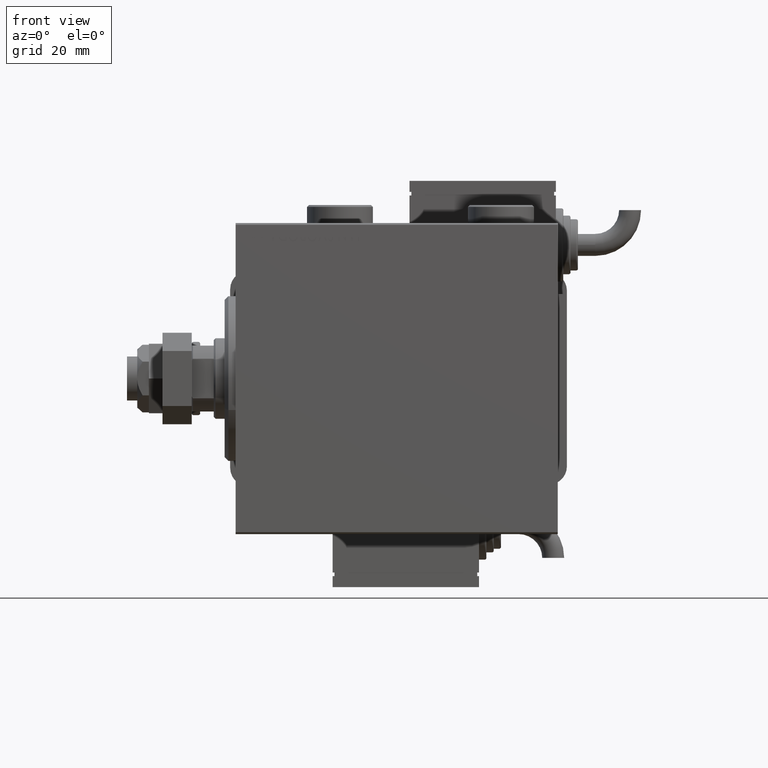
[diagram: clean part render]
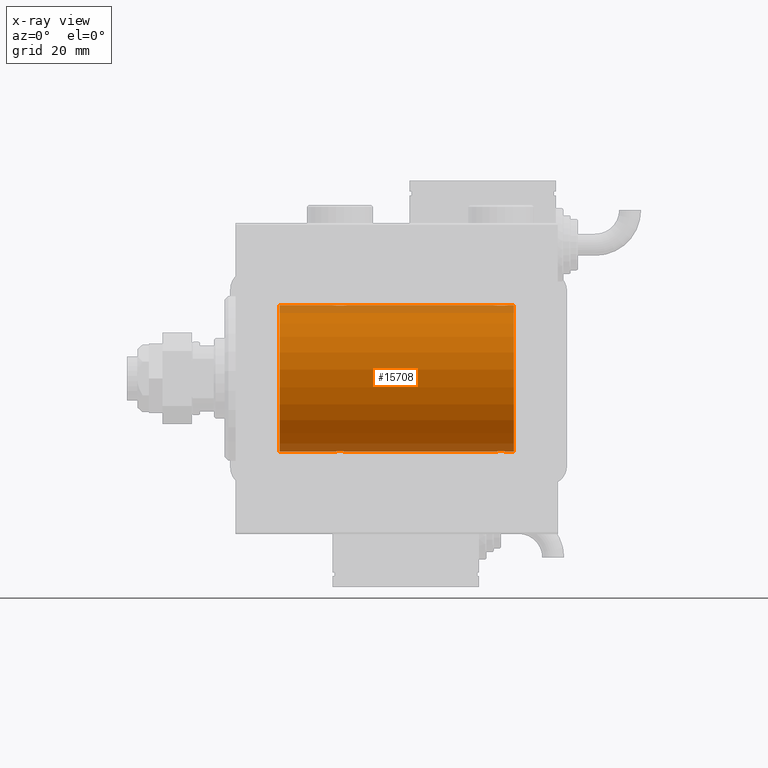
[diagram: x-ray — body ghosted, one internal face saturated and labeled with its STEP entity id]
A machine part, front view, then the same camera in x-ray: the body is ghosted and one INTERNAL B-rep face — a face not visible from any outside direction — is saturated and labeled: STEP entity #15708.
In plain terms, the highlighted cylindrical surface (partial cylindrical patch) has radius 20 mm, axis along (-1, -0, -0).
Its self-contained STEP definition (entity closure, byte-faithful):
#68 = VECTOR ( 'NONE', #35836, 1000.000000000000000 ) ;
#344 = CARTESIAN_POINT ( 'NONE',  ( 74.50000000000001421, 2.449293582762867932E-15, -20.00000000000000000 ) ) ;
#466 = CARTESIAN_POINT ( 'NONE',  ( 72.63365196142451907, -1.999898234284062104, -19.89975896996866211 ) ) ;
#1258 = CARTESIAN_POINT ( 'NONE',  ( 27.17903093152711591, -1.507328959728495787, -19.94333197382386302 ) ) ;
#1333 = DIRECTION ( 'NONE',  ( -1.000000000000000000, -0.000000000000000000, -0.000000000000000000 ) ) ;
#1648 = CARTESIAN_POINT ( 'NONE',  ( 76.00000000000000000, 2.449293598294706513E-15, -20.00000000000000000 ) ) ;
#1934 = CARTESIAN_POINT ( 'NONE',  ( 73.01648532918906653, -1.936551476643010528, 19.90603968831098669 ) ) ;
#2846 = CARTESIAN_POINT ( 'NONE',  ( 71.61170562792909777, -1.796691196322324879, 19.91919800395357143 ) ) ;
#3143 = CARTESIAN_POINT ( 'NONE',  ( 70.50000000000002842, -0.2610801504281921037, 20.00000000000000000 ) ) ;
#3456 = VECTOR ( 'NONE', #1333, 1000.000000000000000 ) ;
#3522 = VERTEX_POINT ( 'NONE', #21396 ) ;
#3768 = CARTESIAN_POINT ( 'NONE',  ( 11.99999999999999645, 2.449293598294706513E-15, -20.00000000000000000 ) ) ;
#4494 = CARTESIAN_POINT ( 'NONE',  ( 73.01923512135279282, -1.935816449315126642, -19.90611141657402072 ) ) ;
#4801 = CARTESIAN_POINT ( 'NONE',  ( 71.49932780860757475, -1.736582545981372405, -19.92459705242980661 ) ) ;
#4942 = CARTESIAN_POINT ( 'NONE',  ( 26.55244937117491943, -0.5243189001515041747, 19.99457699142850231 ) ) ;
#4997 = CARTESIAN_POINT ( 'NONE',  ( 29.14630673924644100, -1.897222639860597360, -19.90987429971497136 ) ) ;
#5112 = CARTESIAN_POINT ( 'NONE',  ( 70.75313023696928383, -1.008108445278686816, -19.97602680192586178 ) ) ;
#5421 = ORIENTED_EDGE ( 'NONE', *, *, #8263, .T. ) ;
#5900 = CARTESIAN_POINT ( 'NONE',  ( 26.50000000000000355, -6.257798774011376898E-15, -20.00000000000000000 ) ) ;
#6401 = EDGE_LOOP ( 'NONE', ( #32742, #42999, #15793, #60780, #19086, #5421, #21554, #8772, #47733, #59424, #31128, #29826 ) ) ;
#6534 = EDGE_CURVE ( 'NONE', #37698, #26781, #32782, .T. ) ;
#6537 = CARTESIAN_POINT ( 'NONE',  ( 72.36941128289164737, -2.000100592782554809, -19.89973863218035888 ) ) ;
#7004 = EDGE_CURVE ( 'NONE', #49401, #28602, #7451, .T. ) ;
#7179 = CARTESIAN_POINT ( 'NONE',  ( 71.85369326075363006, -1.897222639860601356, 19.90987429971496425 ) ) ;
#7235 = CARTESIAN_POINT ( 'NONE',  ( 76.00000000000000000, 0.000000000000000000, 0.000000000000000000 ) ) ;
#7446 = CARTESIAN_POINT ( 'NONE',  ( 76.00000000000000000, 2.449293598294706513E-15, -20.00000000000000000 ) ) ;
#7451 = CIRCLE ( 'NONE', #18275, 20.00000000000000000 ) ;
#7487 = CARTESIAN_POINT ( 'NONE',  ( 72.23641855908587672, -1.986835489085817086, 19.90108393514801932 ) ) ;
#7542 = DIRECTION ( 'NONE',  ( 0.000000000000000000, 0.000000000000000000, 1.000000000000000000 ) ) ;
#8263 = EDGE_CURVE ( 'NONE', #3522, #49401, #12072, .T. ) ;
#8658 = CARTESIAN_POINT ( 'NONE',  ( 28.36634803857551290, -1.999898234284068321, 19.89975896996865856 ) ) ;
#8772 = ORIENTED_EDGE ( 'NONE', *, *, #39604, .F. ) ;
#8967 = CARTESIAN_POINT ( 'NONE',  ( 28.23641855908585541, -1.986835489085820194, 19.90108393514801222 ) ) ;
#9438 = CARTESIAN_POINT ( 'NONE',  ( 74.24825913460018967, -1.005710574260840984, -19.97614991974274901 ) ) ;
#9651 = EDGE_CURVE ( 'NONE', #44186, #37698, #28610, .T. ) ;
#9746 = CARTESIAN_POINT ( 'NONE',  ( 73.50306556339603503, -1.735203193119893461, -19.92471783160911514 ) ) ;
#10237 = CARTESIAN_POINT ( 'NONE',  ( 28.36941128289166514, -2.000100592782555697, -19.89973863218036598 ) ) ;
#10316 = CARTESIAN_POINT ( 'NONE',  ( 30.50000000000000000, 2.449293582768389958E-15, -20.00000000000000000 ) ) ;
#10649 = EDGE_CURVE ( 'NONE', #26781, #33997, #17196, .T. ) ;
#11506 = CARTESIAN_POINT ( 'NONE',  ( 74.24686976303073038, -1.008108445278686371, 19.97602680192586178 ) ) ;
#11838 = EDGE_CURVE ( 'NONE', #27870, #44987, #51518, .T. ) ;
#12072 = LINE ( 'NONE', #7446, #32117 ) ;
#12111 = CARTESIAN_POINT ( 'NONE',  ( 76.00000000000000000, 0.000000000000000000, 20.00000000000000000 ) ) ;
#12720 = CARTESIAN_POINT ( 'NONE',  ( 72.76077256031568652, -1.987205673487813851, 19.90104673894211018 ) ) ;
#13336 = CARTESIAN_POINT ( 'NONE',  ( 30.24825913460018256, -1.005710574260840096, -19.97614991974273835 ) ) ;
#13594 = CARTESIAN_POINT ( 'NONE',  ( 29.01648532918905232, -1.936551476643010528, 19.90603968831098314 ) ) ;
#13903 = CARTESIAN_POINT ( 'NONE',  ( 29.14348528733042443, -1.898187925611342974, 19.90978194174746818 ) ) ;
#14001 = LINE ( 'NONE', #42671, #39967 ) ;
#14067 = CARTESIAN_POINT ( 'NONE',  ( 74.50000000000002842, -0.2610801504281906049, -19.99999999999999645 ) ) ;
#14205 = CARTESIAN_POINT ( 'NONE',  ( 27.98076487864723561, -1.935816449315131749, 19.90611141657401362 ) ) ;
#14291 = VERTEX_POINT ( 'NONE', #55751 ) ;
#14866 = CARTESIAN_POINT ( 'NONE',  ( 29.72028945794465216, -1.589957321664210665, -19.93683391378736047 ) ) ;
#15466 = CARTESIAN_POINT ( 'NONE',  ( 26.55320515808203297, -0.5270924491156746550, -19.99450181871975829 ) ) ;
#15708 = ADVANCED_FACE ( 'NONE', ( #36200 ), #26014, .F. ) ;
#15793 = ORIENTED_EDGE ( 'NONE', *, *, #6534, .T. ) ;
#15826 = CARTESIAN_POINT ( 'NONE',  ( 76.00000000000000000, 0.000000000000000000, 20.00000000000000000 ) ) ;
#15832 = EDGE_CURVE ( 'NONE', #52191, #44987, #14001, .T. ) ;
#16092 = CARTESIAN_POINT ( 'NONE',  ( 70.55320515808200810, -0.5270924491156711023, -19.99450181871975474 ) ) ;
#17036 = CARTESIAN_POINT ( 'NONE',  ( 71.98076487864723561, -1.935816449315128418, 19.90611141657401362 ) ) ;
#17196 = LINE ( 'NONE', #1648, #3456 ) ;
#17311 = CARTESIAN_POINT ( 'NONE',  ( 70.50000000000000000, -1.553188236289650144E-23, 20.00000000000000000 ) ) ;
#17339 = CARTESIAN_POINT ( 'NONE',  ( 70.75174086539982454, -1.005710574260844314, 19.97614991974274545 ) ) ;
#17614 = B_SPLINE_CURVE_WITH_KNOTS ( 'NONE', 3,
 ( #22575, #36762, #55562, #13336, #29622, #43832, #14866, #39200, #38308, #4997, #47251, #48147, #57974, #10237, #23805, #33647, #56796, #57087, #24097, #42628, #1258, #48446, #34550, #15466, #57382, #5900 ),
 .UNSPECIFIED., .F., .F.,
 ( 4, 2, 2, 2, 2, 2, 2, 2, 2, 2, 2, 2, 4 ),
 ( 0.006256819553329837948, 0.007038738568778813223, 0.007820657584227789366, 0.008211617091952273101, 0.008602576599676756836, 0.008993536107401240570, 0.009384495615125724305, 0.009775455122850208040, 0.01016641463057469177, 0.01055737413829917551, 0.01094833364602365924, 0.01173025266147262498, 0.01251217167692159245 ),
 .UNSPECIFIED. ) ;
#17903 = CARTESIAN_POINT ( 'NONE',  ( 30.09774691554730808, -1.230936344679279593, 19.96293863536309487 ) ) ;
#18222 = VECTOR ( 'NONE', #53123, 1000.000000000000000 ) ;
#18275 = AXIS2_PLACEMENT_3D ( 'NONE', #34805, #58538, #54845 ) ;
#18679 = CARTESIAN_POINT ( 'NONE',  ( 73.38829437207093065, -1.796691196322316886, -19.91919800395357143 ) ) ;
#19086 = ORIENTED_EDGE ( 'NONE', *, *, #49413, .T. ) ;
#19221 = DIRECTION ( 'NONE',  ( -1.000000000000000000, -0.000000000000000000, -0.000000000000000000 ) ) ;
#20074 = CIRCLE ( 'NONE', #38789, 20.00000000000000000 ) ;
#21362 = CARTESIAN_POINT ( 'NONE',  ( 74.44679484191796348, -0.5270924491156685487, 19.99450181871975474 ) ) ;
#21396 = CARTESIAN_POINT ( 'NONE',  ( 26.50000000000000355, -6.257798774011376898E-15, -20.00000000000000000 ) ) ;
#21554 = ORIENTED_EDGE ( 'NONE', *, *, #7004, .T. ) ;
#22575 = CARTESIAN_POINT ( 'NONE',  ( 30.50000000000000000, 2.449293582768389958E-15, -20.00000000000000000 ) ) ;
#23131 = CARTESIAN_POINT ( 'NONE',  ( 26.50000000000001421, -0.2610801504281932695, 20.00000000000000000 ) ) ;
#23185 = AXIS2_PLACEMENT_3D ( 'NONE', #7235, #31550, #7542 ) ;
#23306 = CARTESIAN_POINT ( 'NONE',  ( 71.98351467081099031, -1.936551476643008529, -19.90603968831099024 ) ) ;
#23603 = CARTESIAN_POINT ( 'NONE',  ( 71.28194580527849666, -1.591668229360193143, -19.93669678979812332 ) ) ;
#23805 = CARTESIAN_POINT ( 'NONE',  ( 28.23922743968432414, -1.987205673487811630, -19.90104673894211018 ) ) ;
#24097 = CARTESIAN_POINT ( 'NONE',  ( 27.49932780860757475, -1.736582545981378845, -19.92459705242981371 ) ) ;
#25636 = CARTESIAN_POINT ( 'NONE',  ( 76.00000000000000000, 0.000000000000000000, 20.00000000000000000 ) ) ;
#25960 = CARTESIAN_POINT ( 'NONE',  ( 73.50067219139242525, -1.736582545981373515, 19.92459705242980306 ) ) ;
#26014 = CYLINDRICAL_SURFACE ( 'NONE', #23185, 20.00000000000000000 ) ;
#26240 = DIRECTION ( 'NONE',  ( -1.000000000000000000, -0.000000000000000000, -0.000000000000000000 ) ) ;
#26281 = CARTESIAN_POINT ( 'NONE',  ( 70.50000000000000000, -1.553188236289650144E-23, 20.00000000000000000 ) ) ;
#26573 = CARTESIAN_POINT ( 'NONE',  ( 74.09774691554730452, -1.230936344679277372, 19.96293863536309132 ) ) ;
#26781 = VERTEX_POINT ( 'NONE', #29642 ) ;
#26874 = CARTESIAN_POINT ( 'NONE',  ( 73.82096906847289119, -1.507328959728492235, 19.94333197382385592 ) ) ;
#27440 = CARTESIAN_POINT ( 'NONE',  ( 30.24686976303072328, -1.008108445278688148, 19.97602680192586533 ) ) ;
#27870 = VERTEX_POINT ( 'NONE', #29981 ) ;
#27983 = EDGE_CURVE ( 'NONE', #52077, #14291, #34913, .T. ) ;
#27989 = EDGE_CURVE ( 'NONE', #52191, #14291, #31735, .T. ) ;
#28235 = CARTESIAN_POINT ( 'NONE',  ( 71.85651471266959334, -1.898187925611341198, -19.90978194174746818 ) ) ;
#28374 = CARTESIAN_POINT ( 'NONE',  ( 27.49693443660398273, -1.735203193119900344, 19.92471783160911158 ) ) ;
#28534 = CARTESIAN_POINT ( 'NONE',  ( 70.90225308445273811, -1.230936344679278038, -19.96293863536309487 ) ) ;
#28602 = VERTEX_POINT ( 'NONE', #43605 ) ;
#28610 = LINE ( 'NONE', #52052, #48908 ) ;
#29622 = CARTESIAN_POINT ( 'NONE',  ( 30.09941524884030528, -1.228758402364235724, -19.96307487248084911 ) ) ;
#29642 = CARTESIAN_POINT ( 'NONE',  ( 70.50000000000000000, -5.133775462521235346E-15, -20.00000000000000000 ) ) ;
#29826 = ORIENTED_EDGE ( 'NONE', *, *, #27983, .F. ) ;
#29981 = CARTESIAN_POINT ( 'NONE',  ( 26.50000000000000355, -1.552596590610734385E-23, 20.00000000000000000 ) ) ;
#30261 = CARTESIAN_POINT ( 'NONE',  ( 74.09941524884031594, -1.228758402364235947, -19.96307487248084556 ) ) ;
#30600 = CARTESIAN_POINT ( 'NONE',  ( 73.14348528733042087, -1.898187925611342974, 19.90978194174746818 ) ) ;
#31128 = ORIENTED_EDGE ( 'NONE', *, *, #27989, .T. ) ;
#31550 = DIRECTION ( 'NONE',  ( -1.000000000000000000, -0.000000000000000000, -0.000000000000000000 ) ) ;
#31735 = B_SPLINE_CURVE_WITH_KNOTS ( 'NONE', 3,
 ( #26281, #3143, #35537, #17339, #53725, #39867, #36148, #54946, #2846, #7179, #17036, #7487, #35231, #59259, #12720, #1934, #30600, #39564, #25960, #58338, #26874, #26573, #11506, #21362, #54639, #54341 ),
 .UNSPECIFIED., .F., .F.,
 ( 4, 2, 2, 2, 2, 2, 2, 2, 2, 2, 2, 2, 4 ),
 ( 0.006256819553329831876, 0.007038738568778781998, 0.007820657584227732120, 0.008211617091952221059, 0.008602576599676711733, 0.008993536107401200672, 0.009384495615125689610, 0.009775455122850180284, 0.01016641463057467096, 0.01055737413829915816, 0.01094833364602364884, 0.01173025266147262671, 0.01251217167692160459 ),
 .UNSPECIFIED. ) ;
#32062 = CARTESIAN_POINT ( 'NONE',  ( 27.17693331080529973, -1.505486175075776645, 19.94347168299866979 ) ) ;
#32117 = VECTOR ( 'NONE', #26240, 1000.000000000000000 ) ;
#32742 = ORIENTED_EDGE ( 'NONE', *, *, #55908, .F. ) ;
#32782 = B_SPLINE_CURVE_WITH_KNOTS ( 'NONE', 3,
 ( #44165, #14067, #47357, #9438, #30261, #43861, #48475, #9746, #18679, #53692, #4494, #37500, #466, #6537, #39533, #23306, #28235, #58004, #4801, #23603, #42133, #28534, #5112, #16092, #34277, #53089 ),
 .UNSPECIFIED., .F., .F.,
 ( 4, 2, 2, 2, 2, 2, 2, 2, 2, 2, 2, 2, 4 ),
 ( 0.006256819553329831876, 0.007038738568778780264, 0.007820657584227728651, 0.008211617091952217590, 0.008602576599676706529, 0.008993536107401195467, 0.009384495615125684406, 0.009775455122850173345, 0.01016641463057466055, 0.01055737413829914775, 0.01094833364602363843, 0.01173025266147261284, 0.01251217167692158898 ),
 .UNSPECIFIED. ) ;
#32984 = CARTESIAN_POINT ( 'NONE',  ( 30.50000000000000000, -0.2644051013330992461, 19.99999999999999645 ) ) ;
#33647 = CARTESIAN_POINT ( 'NONE',  ( 27.98351467081095123, -1.936551476643008529, -19.90603968831098314 ) ) ;
#33997 = VERTEX_POINT ( 'NONE', #10316 ) ;
#34277 = CARTESIAN_POINT ( 'NONE',  ( 70.50000000000000000, -0.2644051013331069067, -19.99999999999999289 ) ) ;
#34550 = CARTESIAN_POINT ( 'NONE',  ( 26.75313023696928738, -1.008108445278691478, -19.97602680192586533 ) ) ;
#34805 = CARTESIAN_POINT ( 'NONE',  ( 11.99999999999999645, 0.000000000000000000, 0.000000000000000000 ) ) ;
#34913 = LINE ( 'NONE', #12111, #68 ) ;
#35231 = CARTESIAN_POINT ( 'NONE',  ( 72.36634803857549514, -1.999898234284064324, 19.89975896996866211 ) ) ;
#35537 = CARTESIAN_POINT ( 'NONE',  ( 70.55244937117491588, -0.5243189001515065062, 19.99457699142850231 ) ) ;
#35836 = DIRECTION ( 'NONE',  ( -1.000000000000000000, -0.000000000000000000, -0.000000000000000000 ) ) ;
#36148 = CARTESIAN_POINT ( 'NONE',  ( 71.27971054205536916, -1.589957321664209333, 19.93683391378736403 ) ) ;
#36200 = FACE_OUTER_BOUND ( 'NONE', #6401, .T. ) ;
#36710 = CARTESIAN_POINT ( 'NONE',  ( 28.63058871710834552, -2.000100592782559250, 19.89973863218036598 ) ) ;
#36762 = CARTESIAN_POINT ( 'NONE',  ( 30.50000000000000000, -0.2610801504281901053, -20.00000000000000000 ) ) ;
#37024 = CARTESIAN_POINT ( 'NONE',  ( 29.82096906847290896, -1.507328959728495121, 19.94333197382386302 ) ) ;
#37141 = CARTESIAN_POINT ( 'NONE',  ( 76.00000000000000000, 0.000000000000000000, 0.000000000000000000 ) ) ;
#37248 = CARTESIAN_POINT ( 'NONE',  ( 76.00000000000000000, 2.449293598294706513E-15, -20.00000000000000000 ) ) ;
#37332 = CARTESIAN_POINT ( 'NONE',  ( 26.75174086539980678, -1.005710574260844092, 19.97614991974273835 ) ) ;
#37500 = CARTESIAN_POINT ( 'NONE',  ( 72.76358144091415170, -1.986835489085815309, -19.90108393514801577 ) ) ;
#37646 = CARTESIAN_POINT ( 'NONE',  ( 27.85369326075355190, -1.897222639860601578, 19.90987429971495715 ) ) ;
#37698 = VERTEX_POINT ( 'NONE', #344 ) ;
#38308 = CARTESIAN_POINT ( 'NONE',  ( 29.38829437207092354, -1.796691196322319994, -19.91919800395357498 ) ) ;
#38789 = AXIS2_PLACEMENT_3D ( 'NONE', #37141, #47008, #51616 ) ;
#39200 = CARTESIAN_POINT ( 'NONE',  ( 29.50306556339602082, -1.735203193119896348, -19.92471783160911158 ) ) ;
#39533 = CARTESIAN_POINT ( 'NONE',  ( 72.23922743968432769, -1.987205673487811630, -19.90104673894211018 ) ) ;
#39564 = CARTESIAN_POINT ( 'NONE',  ( 73.38579076670727375, -1.797933656607921371, 19.91908554465557657 ) ) ;
#39604 = EDGE_CURVE ( 'NONE', #27870, #28602, #58038, .T. ) ;
#39867 = CARTESIAN_POINT ( 'NONE',  ( 71.17693331080535302, -1.505486175075774868, 19.94347168299867690 ) ) ;
#39967 = VECTOR ( 'NONE', #19221, 1000.000000000000000 ) ;
#41645 = CARTESIAN_POINT ( 'NONE',  ( 26.50000000000000355, -1.552596590610734385E-23, 20.00000000000000000 ) ) ;
#41962 = CARTESIAN_POINT ( 'NONE',  ( 27.61170562792909777, -1.796691196322324213, 19.91919800395357498 ) ) ;
#42133 = CARTESIAN_POINT ( 'NONE',  ( 71.17903093152709459, -1.507328959728491791, -19.94333197382385592 ) ) ;
#42628 = CARTESIAN_POINT ( 'NONE',  ( 27.28194580527850022, -1.591668229360200026, -19.93669678979812687 ) ) ;
#42671 = CARTESIAN_POINT ( 'NONE',  ( 76.00000000000000000, 0.000000000000000000, 20.00000000000000000 ) ) ;
#42814 = DIRECTION ( 'NONE',  ( -1.000000000000000000, -0.000000000000000000, -0.000000000000000000 ) ) ;
#42999 = ORIENTED_EDGE ( 'NONE', *, *, #9651, .T. ) ;
#43605 = CARTESIAN_POINT ( 'NONE',  ( 11.99999999999999645, 0.000000000000000000, 20.00000000000000000 ) ) ;
#43832 = CARTESIAN_POINT ( 'NONE',  ( 29.82306668919470027, -1.505486175075773314, -19.94347168299866979 ) ) ;
#43861 = CARTESIAN_POINT ( 'NONE',  ( 73.82306668919467540, -1.505486175075773758, -19.94347168299867690 ) ) ;
#44165 = CARTESIAN_POINT ( 'NONE',  ( 74.50000000000001421, 2.449293582762867932E-15, -20.00000000000000000 ) ) ;
#44186 = VERTEX_POINT ( 'NONE', #37248 ) ;
#44987 = VERTEX_POINT ( 'NONE', #60662 ) ;
#46272 = CARTESIAN_POINT ( 'NONE',  ( 30.44679484191798124, -0.5270924491156695479, 19.99450181871975829 ) ) ;
#47008 = DIRECTION ( 'NONE',  ( -1.000000000000000000, 0.000000000000000000, 0.000000000000000000 ) ) ;
#47251 = CARTESIAN_POINT ( 'NONE',  ( 29.01923512135277150, -1.935816449315127308, -19.90611141657401362 ) ) ;
#47357 = CARTESIAN_POINT ( 'NONE',  ( 74.44755062882509833, -0.5243189001515005110, -19.99457699142850231 ) ) ;
#47733 = ORIENTED_EDGE ( 'NONE', *, *, #11838, .T. ) ;
#48147 = CARTESIAN_POINT ( 'NONE',  ( 28.76358144091414815, -1.986835489085816198, -19.90108393514801222 ) ) ;
#48446 = CARTESIAN_POINT ( 'NONE',  ( 26.90225308445270613, -1.230936344679281369, -19.96293863536309487 ) ) ;
#48475 = CARTESIAN_POINT ( 'NONE',  ( 73.72028945794465926, -1.589957321664207113, -19.93683391378736758 ) ) ;
#48908 = VECTOR ( 'NONE', #42814, 1000.000000000000000 ) ;
#49401 = VERTEX_POINT ( 'NONE', #3768 ) ;
#49413 = EDGE_CURVE ( 'NONE', #33997, #3522, #17614, .T. ) ;
#50899 = CARTESIAN_POINT ( 'NONE',  ( 29.50067219139245367, -1.736582545981377734, 19.92459705242981371 ) ) ;
#51518 = B_SPLINE_CURVE_WITH_KNOTS ( 'NONE', 3,
 ( #41645, #23131, #4942, #37332, #56123, #32062, #60124, #28374, #41962, #37646, #14205, #8967, #8658, #36710, #60744, #13594, #13903, #55507, #50899, #51815, #37024, #17903, #27440, #46272, #32984, #60427 ),
 .UNSPECIFIED., .F., .F.,
 ( 4, 2, 2, 2, 2, 2, 2, 2, 2, 2, 2, 2, 4 ),
 ( 0.006256819553329818866, 0.007038738568778795009, 0.007820657584227770284, 0.008211617091952255754, 0.008602576599676739488, 0.008993536107401223223, 0.009384495615125706958, 0.009775455122850190692, 0.01016641463057467443, 0.01055737413829915816, 0.01094833364602364190, 0.01173025266147261110, 0.01251217167692157857 ),
 .UNSPECIFIED. ) ;
#51616 = DIRECTION ( 'NONE',  ( 0.000000000000000000, 0.000000000000000000, 1.000000000000000000 ) ) ;
#51815 = CARTESIAN_POINT ( 'NONE',  ( 29.71805419472152110, -1.591668229360197806, 19.93669678979812687 ) ) ;
#52052 = CARTESIAN_POINT ( 'NONE',  ( 76.00000000000000000, 2.449293598294706513E-15, -20.00000000000000000 ) ) ;
#52077 = VERTEX_POINT ( 'NONE', #25636 ) ;
#52191 = VERTEX_POINT ( 'NONE', #17311 ) ;
#53089 = CARTESIAN_POINT ( 'NONE',  ( 70.50000000000000000, -5.133775462521235346E-15, -20.00000000000000000 ) ) ;
#53123 = DIRECTION ( 'NONE',  ( -1.000000000000000000, -0.000000000000000000, -0.000000000000000000 ) ) ;
#53692 = CARTESIAN_POINT ( 'NONE',  ( 73.14630673924648363, -1.897222639860595139, -19.90987429971497136 ) ) ;
#53725 = CARTESIAN_POINT ( 'NONE',  ( 70.90058475115971248, -1.228758402364237945, 19.96307487248085266 ) ) ;
#54341 = CARTESIAN_POINT ( 'NONE',  ( 74.50000000000001421, 1.186436973908835920E-15, 20.00000000000000000 ) ) ;
#54639 = CARTESIAN_POINT ( 'NONE',  ( 74.50000000000001421, -0.2644051013330996902, 20.00000000000000000 ) ) ;
#54845 = DIRECTION ( 'NONE',  ( 0.000000000000000000, 0.000000000000000000, 1.000000000000000000 ) ) ;
#54946 = CARTESIAN_POINT ( 'NONE',  ( 71.49693443660400760, -1.735203193119895460, 19.92471783160911514 ) ) ;
#55507 = CARTESIAN_POINT ( 'NONE',  ( 29.38579076670728440, -1.797933656607920261, 19.91908554465558367 ) ) ;
#55562 = CARTESIAN_POINT ( 'NONE',  ( 30.44755062882508412, -0.5243189001515006220, -19.99457699142850231 ) ) ;
#55751 = CARTESIAN_POINT ( 'NONE',  ( 74.50000000000001421, 1.186436973908835920E-15, 20.00000000000000000 ) ) ;
#55908 = EDGE_CURVE ( 'NONE', #44186, #52077, #20074, .T. ) ;
#56123 = CARTESIAN_POINT ( 'NONE',  ( 26.90058475115969827, -1.228758402364238833, 19.96307487248084911 ) ) ;
#56796 = CARTESIAN_POINT ( 'NONE',  ( 27.85651471266958978, -1.898187925611340976, -19.90978194174746818 ) ) ;
#57087 = CARTESIAN_POINT ( 'NONE',  ( 27.61420923329272981, -1.797933656607920039, -19.91908554465558367 ) ) ;
#57382 = CARTESIAN_POINT ( 'NONE',  ( 26.50000000000000711, -0.2644051013331055744, -19.99999999999999645 ) ) ;
#57974 = CARTESIAN_POINT ( 'NONE',  ( 28.63365196142447644, -1.999898234284065657, -19.89975896996865856 ) ) ;
#58004 = CARTESIAN_POINT ( 'NONE',  ( 71.61420923329269783, -1.797933656607920039, -19.91908554465557657 ) ) ;
#58038 = LINE ( 'NONE', #15826, #18222 ) ;
#58338 = CARTESIAN_POINT ( 'NONE',  ( 73.71805419472153176, -1.591668229360194697, 19.93669678979812332 ) ) ;
#58538 = DIRECTION ( 'NONE',  ( -1.000000000000000000, 0.000000000000000000, 0.000000000000000000 ) ) ;
#59259 = CARTESIAN_POINT ( 'NONE',  ( 72.63058871710833841, -2.000100592782557474, 19.89973863218036243 ) ) ;
#59424 = ORIENTED_EDGE ( 'NONE', *, *, #15832, .F. ) ;
#60124 = CARTESIAN_POINT ( 'NONE',  ( 27.27971054205535495, -1.589957321664213552, 19.93683391378736047 ) ) ;
#60427 = CARTESIAN_POINT ( 'NONE',  ( 30.50000000000000000, -9.453669475664189070E-16, 20.00000000000000000 ) ) ;
#60662 = CARTESIAN_POINT ( 'NONE',  ( 30.50000000000000000, -9.453669475664189070E-16, 20.00000000000000000 ) ) ;
#60744 = CARTESIAN_POINT ( 'NONE',  ( 28.76077256031568652, -1.987205673487814739, 19.90104673894211018 ) ) ;
#60780 = ORIENTED_EDGE ( 'NONE', *, *, #10649, .T. ) ;